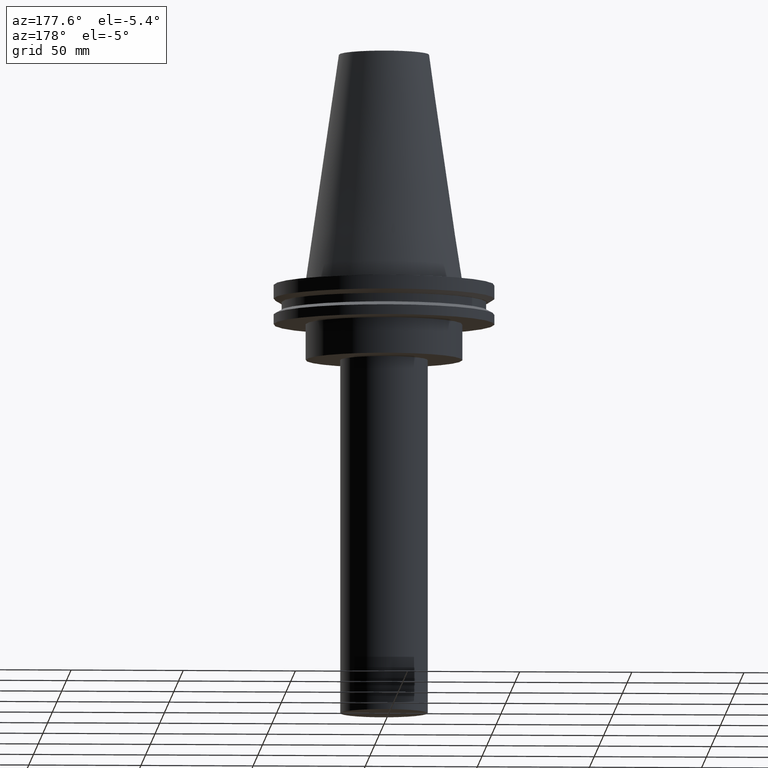
[diagram: clean part render]
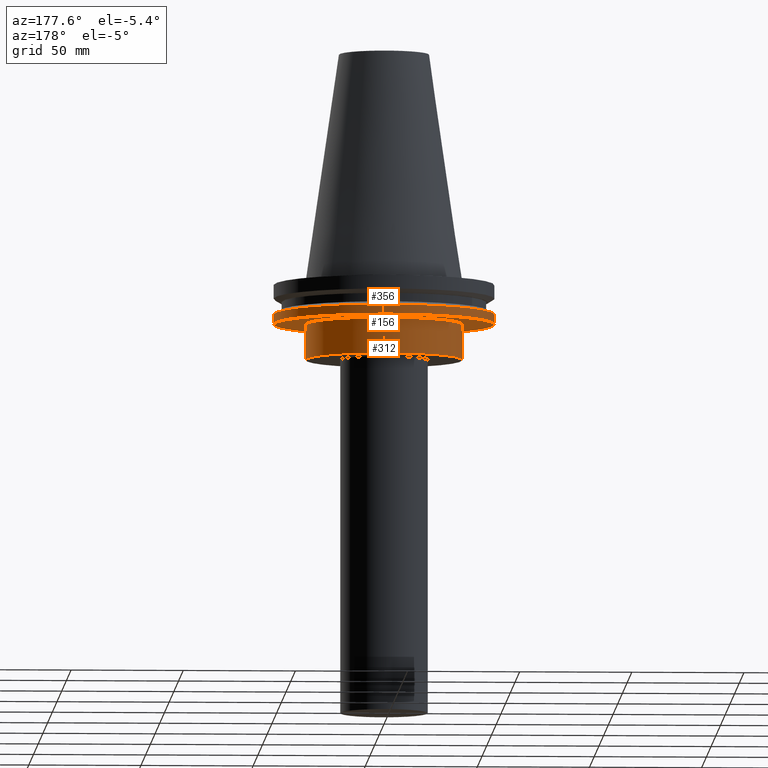
[diagram: same view with one multi-face feature highlighted, each face labeled with its STEP entity id]
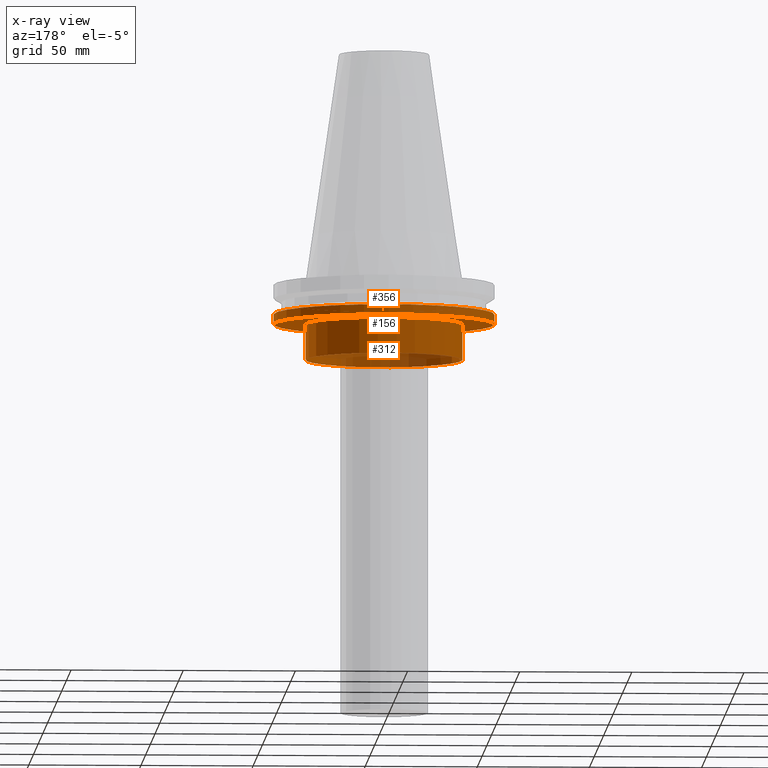
[diagram: x-ray of the same camera — body ghosted, the whole feature saturated]
A machine part, auxiliary view. The highlighted faces form ONE feature: a stepped (counterbored) hole: 2 coaxial cylindrical walls of radii 34.925 -> 49.215 mm joined by 1 annular planar shoulder face(s). The faces share edges in the B-rep.
The next image is the same camera in x-ray: the body ghosted and the whole hole feature saturated, so the bore chain is visible through the body.
Their STEP definitions:
[1] entity #356 (Cylinder):
#1 = CYLINDRICAL_SURFACE ( 'NONE', #44, 49.21499999999998920 ) ;
#5 = EDGE_LOOP ( 'NONE', ( #219 ) ) ;
#32 = CIRCLE ( 'NONE', #130, 49.21499999999998920 ) ;
#44 = AXIS2_PLACEMENT_3D ( 'NONE', #240, #334, #52 ) ;
#52 = DIRECTION ( 'NONE',  ( 1.000000000000000000, 0.000000000000000000, 0.000000000000000000 ) ) ;
#54 = VERTEX_POINT ( 'NONE', #353 ) ;
#65 = AXIS2_PLACEMENT_3D ( 'NONE', #230, #292, #271 ) ;
#122 = VERTEX_POINT ( 'NONE', #265 ) ;
#125 = CARTESIAN_POINT ( 'NONE',  ( 0.000000000000000000, 0.000000000000000000, -14.65761014474876944 ) ) ;
#127 = DIRECTION ( 'NONE',  ( 1.000000000000000000, 0.000000000000000000, 0.000000000000000000 ) ) ;
#130 = AXIS2_PLACEMENT_3D ( 'NONE', #125, #212, #127 ) ;
#168 = CIRCLE ( 'NONE', #65, 49.21499999999998920 ) ;
#185 = EDGE_LOOP ( 'NONE', ( #342 ) ) ;
#212 = DIRECTION ( 'NONE',  ( -0.000000000000000000, -0.000000000000000000, 1.000000000000000000 ) ) ;
#214 = FACE_OUTER_BOUND ( 'NONE', #185, .T. ) ;
#219 = ORIENTED_EDGE ( 'NONE', *, *, #373, .T. ) ;
#230 = CARTESIAN_POINT ( 'NONE',  ( 0.000000000000000000, 0.000000000000000000, -19.04999999999999716 ) ) ;
#240 = CARTESIAN_POINT ( 'NONE',  ( 0.000000000000000000, 0.000000000000000000, 101.5999999999999943 ) ) ;
#265 = CARTESIAN_POINT ( 'NONE',  ( 49.21499999999998920, 0.000000000000000000, -14.65761014474876944 ) ) ;
#271 = DIRECTION ( 'NONE',  ( 1.000000000000000000, 0.000000000000000000, 0.000000000000000000 ) ) ;
#275 = FACE_OUTER_BOUND ( 'NONE', #5, .T. ) ;
#292 = DIRECTION ( 'NONE',  ( -0.000000000000000000, -0.000000000000000000, 1.000000000000000000 ) ) ;
#319 = EDGE_CURVE ( 'NONE', #122, #122, #32, .T. ) ;
#334 = DIRECTION ( 'NONE',  ( -0.000000000000000000, -0.000000000000000000, 1.000000000000000000 ) ) ;
#342 = ORIENTED_EDGE ( 'NONE', *, *, #319, .F. ) ;
#353 = CARTESIAN_POINT ( 'NONE',  ( 49.21499999999998920, 0.000000000000000000, -19.04999999999999716 ) ) ;
#356 = ADVANCED_FACE ( 'NONE', ( #214, #275 ), #1, .T. ) ;
#373 = EDGE_CURVE ( 'NONE', #54, #54, #168, .T. ) ;
[2] entity #312 (Cylinder):
#4 = DIRECTION ( 'NONE',  ( 1.000000000000000000, 0.000000000000000000, 0.000000000000000000 ) ) ;
#18 = VERTEX_POINT ( 'NONE', #146 ) ;
#27 = DIRECTION ( 'NONE',  ( -0.000000000000000000, -0.000000000000000000, 1.000000000000000000 ) ) ;
#92 = CYLINDRICAL_SURFACE ( 'NONE', #224, 34.92499999999999716 ) ;
#132 = EDGE_LOOP ( 'NONE', ( #313 ) ) ;
#136 = CARTESIAN_POINT ( 'NONE',  ( 0.000000000000000000, 0.000000000000000000, -19.04999999999999716 ) ) ;
#146 = CARTESIAN_POINT ( 'NONE',  ( 34.92499999999999716, 0.000000000000000000, -35.00000000000000000 ) ) ;
#154 = DIRECTION ( 'NONE',  ( 1.000000000000000000, 0.000000000000000000, 0.000000000000000000 ) ) ;
#166 = ORIENTED_EDGE ( 'NONE', *, *, #253, .T. ) ;
#182 = CARTESIAN_POINT ( 'NONE',  ( 0.000000000000000000, 0.000000000000000000, 101.5999999999999943 ) ) ;
#189 = CARTESIAN_POINT ( 'NONE',  ( 0.000000000000000000, 0.000000000000000000, -35.00000000000000000 ) ) ;
#204 = VERTEX_POINT ( 'NONE', #311 ) ;
#211 = EDGE_CURVE ( 'NONE', #204, #204, #281, .T. ) ;
#224 = AXIS2_PLACEMENT_3D ( 'NONE', #182, #27, #154 ) ;
#229 = DIRECTION ( 'NONE',  ( -0.000000000000000000, -0.000000000000000000, 1.000000000000000000 ) ) ;
#236 = FACE_OUTER_BOUND ( 'NONE', #377, .T. ) ;
#253 = EDGE_CURVE ( 'NONE', #18, #18, #306, .T. ) ;
#272 = AXIS2_PLACEMENT_3D ( 'NONE', #136, #276, #4 ) ;
#276 = DIRECTION ( 'NONE',  ( -0.000000000000000000, -0.000000000000000000, 1.000000000000000000 ) ) ;
#281 = CIRCLE ( 'NONE', #272, 34.92499999999999716 ) ;
#306 = CIRCLE ( 'NONE', #358, 34.92499999999999716 ) ;
#311 = CARTESIAN_POINT ( 'NONE',  ( 34.92499999999999716, 0.000000000000000000, -19.04999999999999716 ) ) ;
#312 = ADVANCED_FACE ( 'NONE', ( #394, #236 ), #92, .T. ) ;
#313 = ORIENTED_EDGE ( 'NONE', *, *, #211, .F. ) ;
#352 = DIRECTION ( 'NONE',  ( 1.000000000000000000, 0.000000000000000000, 0.000000000000000000 ) ) ;
#358 = AXIS2_PLACEMENT_3D ( 'NONE', #189, #229, #352 ) ;
#377 = EDGE_LOOP ( 'NONE', ( #166 ) ) ;
#394 = FACE_OUTER_BOUND ( 'NONE', #132, .T. ) ;
[3] entity #156 (Plane):
#4 = DIRECTION ( 'NONE',  ( 1.000000000000000000, 0.000000000000000000, 0.000000000000000000 ) ) ;
#8 = DIRECTION ( 'NONE',  ( 1.000000000000000000, 0.000000000000000000, 0.000000000000000000 ) ) ;
#54 = VERTEX_POINT ( 'NONE', #353 ) ;
#65 = AXIS2_PLACEMENT_3D ( 'NONE', #230, #292, #271 ) ;
#73 = FACE_OUTER_BOUND ( 'NONE', #317, .T. ) ;
#104 = ORIENTED_EDGE ( 'NONE', *, *, #373, .F. ) ;
#120 = AXIS2_PLACEMENT_3D ( 'NONE', #318, #282, #8 ) ;
#128 = ORIENTED_EDGE ( 'NONE', *, *, #211, .T. ) ;
#136 = CARTESIAN_POINT ( 'NONE',  ( 0.000000000000000000, 0.000000000000000000, -19.04999999999999716 ) ) ;
#156 = ADVANCED_FACE ( 'NONE', ( #73, #162 ), #372, .F. ) ;
#162 = FACE_BOUND ( 'NONE', #374, .T. ) ;
#168 = CIRCLE ( 'NONE', #65, 49.21499999999998920 ) ;
#204 = VERTEX_POINT ( 'NONE', #311 ) ;
#211 = EDGE_CURVE ( 'NONE', #204, #204, #281, .T. ) ;
#230 = CARTESIAN_POINT ( 'NONE',  ( 0.000000000000000000, 0.000000000000000000, -19.04999999999999716 ) ) ;
#271 = DIRECTION ( 'NONE',  ( 1.000000000000000000, 0.000000000000000000, 0.000000000000000000 ) ) ;
#272 = AXIS2_PLACEMENT_3D ( 'NONE', #136, #276, #4 ) ;
#276 = DIRECTION ( 'NONE',  ( -0.000000000000000000, -0.000000000000000000, 1.000000000000000000 ) ) ;
#281 = CIRCLE ( 'NONE', #272, 34.92499999999999716 ) ;
#282 = DIRECTION ( 'NONE',  ( 0.000000000000000000, -0.000000000000000000, 1.000000000000000000 ) ) ;
#292 = DIRECTION ( 'NONE',  ( -0.000000000000000000, -0.000000000000000000, 1.000000000000000000 ) ) ;
#311 = CARTESIAN_POINT ( 'NONE',  ( 34.92499999999999716, 0.000000000000000000, -19.04999999999999716 ) ) ;
#317 = EDGE_LOOP ( 'NONE', ( #104 ) ) ;
#318 = CARTESIAN_POINT ( 'NONE',  ( 0.000000000000000000, 49.21499999999998920, -19.04999999999999716 ) ) ;
#353 = CARTESIAN_POINT ( 'NONE',  ( 49.21499999999998920, 0.000000000000000000, -19.04999999999999716 ) ) ;
#372 = PLANE ( 'NONE',  #120 ) ;
#373 = EDGE_CURVE ( 'NONE', #54, #54, #168, .T. ) ;
#374 = EDGE_LOOP ( 'NONE', ( #128 ) ) ;